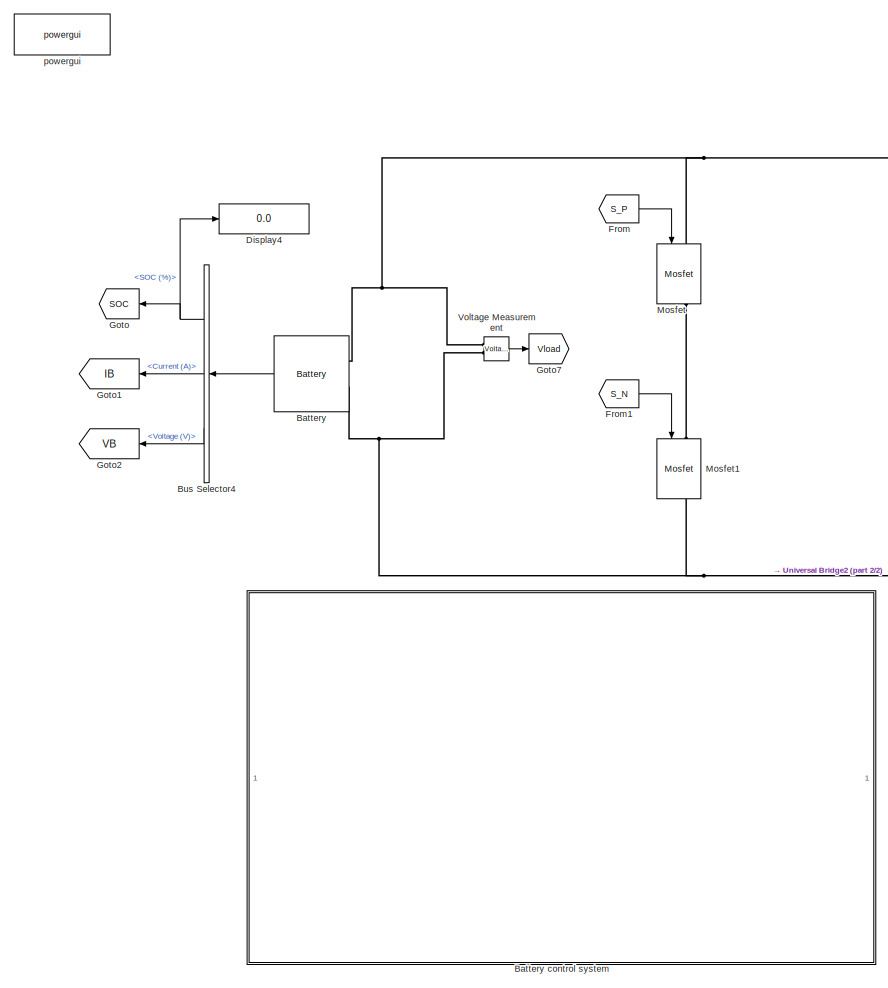
[diagram: root canvas - part 1/2, left side, full height]
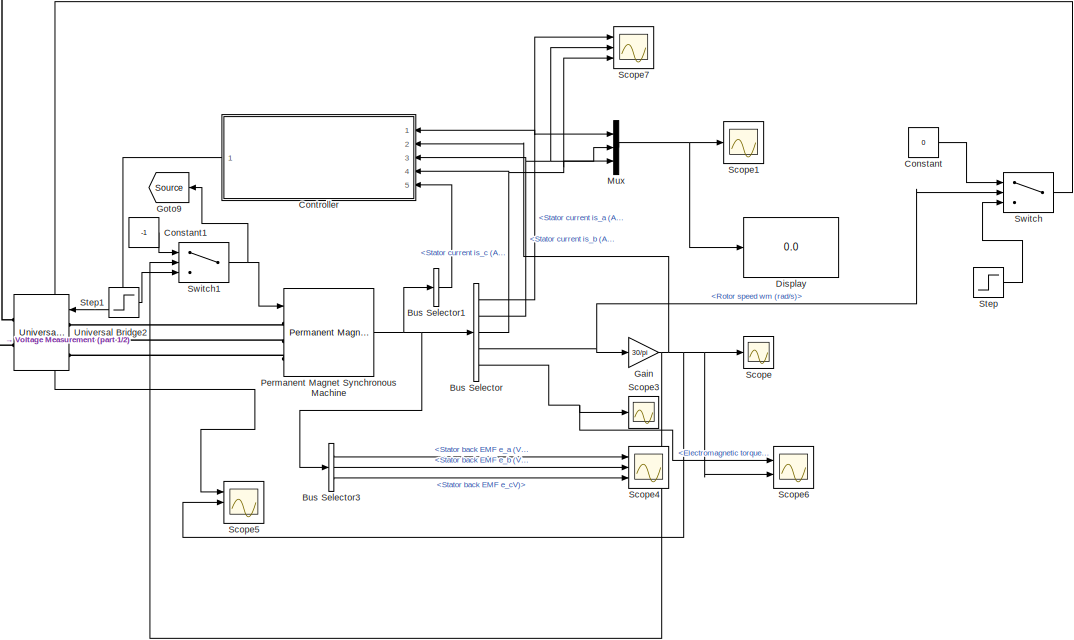
[diagram: root canvas - part 2/2, middle right region]
MODEL slx_4d65a19fce29
KIND model
CONFIG AbsTol = auto
CONFIG EnableMultiTasking = off
CONFIG FixedStep = auto
CONFIG MaxStep = 1e-4
CONFIG MinStep = auto
CONFIG RelTol = 1e-3
CONFIG SampleTimeConstraint = Unconstrained
CONFIG SolverName = ode45
CONFIG StartTime = 0.0
CONFIG StopTime = inf
BLOCK [Reference] Battery  REF=spsBatteryLib/Battery
  Ports = [0, 1, 0, 0, 0, 2]
  SourceBlock = spsBatteryLib/Battery
  SourceProductBaseCode = PS
  SourceType = Battery
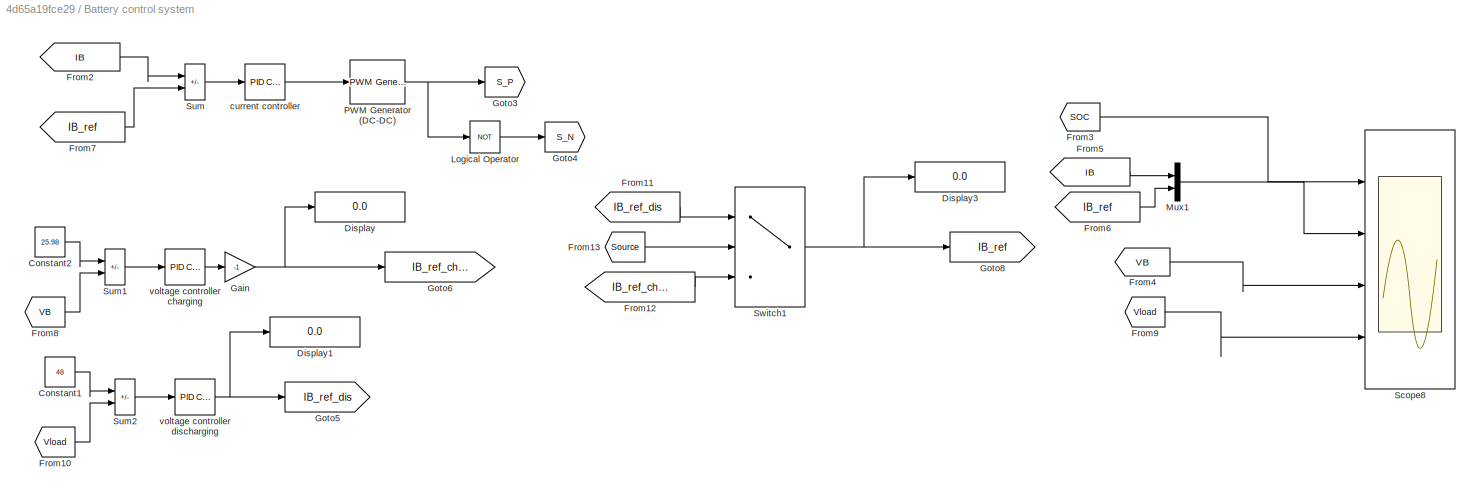
BLOCK [SubSystem] Battery control system
  Ports = []
  RequestExecContextInheritance = off
BLOCK [Constant] Battery control system/Constant1
  Value = 48
BLOCK [Constant] Battery control system/Constant2
  Value = 25.98
BLOCK [Display] Battery control system/Display
  Decimation = 1
  Ports = [1]
BLOCK [Display] Battery control system/Display1
  Decimation = 1
  Ports = [1]
BLOCK [Display] Battery control system/Display3
  Decimation = 1
  Ports = [1]
BLOCK [From] Battery control system/From10
  GotoTag = Vload
BLOCK [From] Battery control system/From11
  GotoTag = IB_ref_dis
BLOCK [From] Battery control system/From12
  GotoTag = IB_ref_charge
BLOCK [From] Battery control system/From13
  GotoTag = Source
BLOCK [From] Battery control system/From2
  GotoTag = IB
BLOCK [From] Battery control system/From3
  GotoTag = SOC
BLOCK [From] Battery control system/From4
  GotoTag = VB
BLOCK [From] Battery control system/From5
  GotoTag = IB
BLOCK [From] Battery control system/From6
  GotoTag = IB_ref
BLOCK [From] Battery control system/From7
  GotoTag = IB_ref
BLOCK [From] Battery control system/From8
  GotoTag = VB
BLOCK [From] Battery control system/From9
  GotoTag = Vload
BLOCK [Gain] Battery control system/Gain
  Gain = -1
BLOCK [Goto] Battery control system/Goto3
  GotoTag = S_P
BLOCK [Goto] Battery control system/Goto4
  GotoTag = S_N
BLOCK [Goto] Battery control system/Goto5
  GotoTag = IB_ref_dis
BLOCK [Goto] Battery control system/Goto6
  GotoTag = IB_ref_charge
BLOCK [Goto] Battery control system/Goto8
  GotoTag = IB_ref
BLOCK [Logic] Battery control system/Logical Operator
  AllPortsSameDT = off
  Operator = NOT
  OutDataTypeStr = boolean
  Ports = [1, 1]
BLOCK [Mux] Battery control system/Mux1
  DisplayOption = bar
  Inputs = 2
  Ports = [2, 1]
BLOCK [Reference] Battery control system/PWM Generator (DC-DC)  REF=spsPWMGeneratorDCDCLib/PWM Generator
(DC-DC)
  Ports = [1, 1]
  SourceBlock = spsPWMGeneratorDCDCLib/PWM Generator\n(DC-DC)
  SourceProductBaseCode = PS
  SourceType = PWM Generator (DC-DC)
BLOCK [Scope] Battery control system/Scope8
  Floating = off
  NumInputPorts = 4
  Ports = [4]
  ScopeSpecificationString = Simulink.scopes.TimeScopeBlockCfg('CurrentConfiguration', extmgr.ConfigurationSet(extmgr.Configuration('Core','General UI',true,'FigureColor',[1 1 1]),extmgr.Configuration('Core','Source UI',true),extmgr.Configuration('Sources','WiredSimulink',true,'DataLoggingVariableName','ScopeData1'),extmgr.Configuration('Visuals','Time Domain',true,'SerializedDisplays',{struct('MinYLimReal','-1.00000','MaxYLi...<+3636ch>
BLOCK [Sum] Battery control system/Sum
  IconShape = rectangular
  Inputs = |+-
  Ports = [2, 1]
BLOCK [Sum] Battery control system/Sum1
  IconShape = rectangular
  Inputs = |+-
  Ports = [2, 1]
BLOCK [Sum] Battery control system/Sum2
  IconShape = rectangular
  Inputs = |+-
  Ports = [2, 1]
BLOCK [Switch] Battery control system/Switch1
  Criteria = u2 > Threshold
  InputSameDT = off
  SaturateOnIntegerOverflow = off
  ZeroCross = off
BLOCK [Reference] Battery control system/current controller  REF=pid_lib/PID Controller
  Ports = [1, 1]
  SourceBlock = pid_lib/PID Controller
  SourceProductBaseCode = SL
  SourceType = PID 1dof
BLOCK [Reference] Battery control system/voltage controller charging  REF=pid_lib/PID Controller
  Ports = [1, 1]
  SourceBlock = pid_lib/PID Controller
  SourceProductBaseCode = SL
  SourceType = PID 1dof
BLOCK [Reference] Battery control system/voltage controller discharging  REF=pid_lib/PID Controller
  Ports = [1, 1]
  SourceBlock = pid_lib/PID Controller
  SourceProductBaseCode = SL
  SourceType = PID 1dof
BLOCK [BusSelector] Bus Selector
  OutputSignals = Stator current is_a (A),Stator current is_b (A),Stator current is_c (A),Rotor speed wm (rad/s),Electromagnetic torque Te (N*m)
  Ports = [1, 5]
BLOCK [BusSelector] Bus Selector1
  OutputAsBus = on
  OutputSignals = Hall effect signal h_a,Hall effect signal h_b,Hall effect signal h_c
  Ports = [1, 1]
BLOCK [BusSelector] Bus Selector3
  OutputSignals = Stator back EMF e_a (V),Stator back EMF e_b (V),Stator back EMF e_cV)
  Ports = [1, 3]
BLOCK [BusSelector] Bus Selector4
  OutputSignals = SOC (%),Current (A),Voltage (V)
  Ports = [1, 3]
BLOCK [Constant] Constant
  Commented = on
  Value = 0
BLOCK [Constant] Constant1
  Value = -1
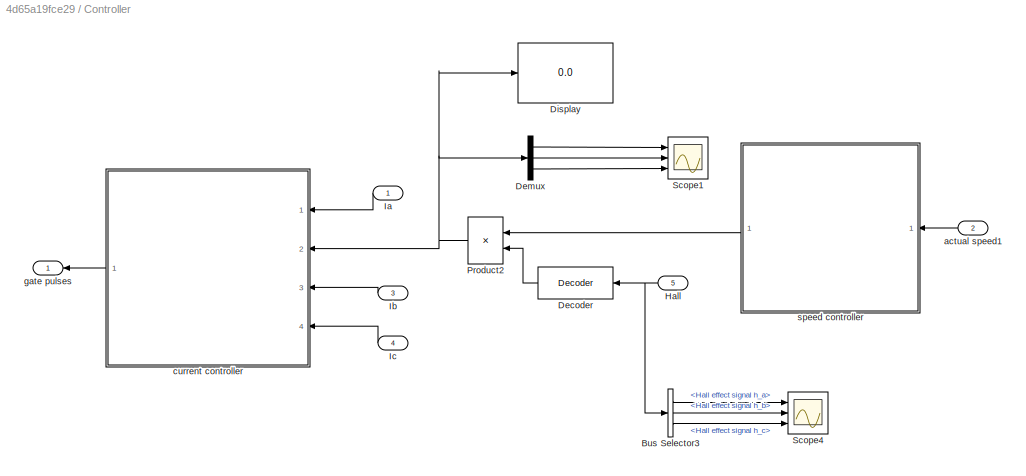
BLOCK [SubSystem] Controller
  Ports = [5, 1]
  RequestExecContextInheritance = off
BLOCK [BusSelector] Controller/Bus Selector3
  OutputSignals = Hall effect signal h_a,Hall effect signal h_b,Hall effect signal h_c
  Ports = [1, 3]
BLOCK [Reference] Controller/Decoder  REF=AC7DriveInternalModels/Current Controller/Decoder
  NameLocation = top
  Ports = [1, 1]
  SourceBlock = AC7DriveInternalModels/Current Controller/Decoder
  SourceProductBaseCode = PS
  SourceType = SubSystem
BLOCK [Demux] Controller/Demux
  Outputs = 3
  Ports = [1, 3]
BLOCK [Display] Controller/Display
  Decimation = 1
  Ports = [1]
BLOCK [Inport] Controller/Hall 
  NameLocation = top
  Port = 5
BLOCK [Inport] Controller/Ia
BLOCK [Inport] Controller/Ib
  Port = 3
BLOCK [Inport] Controller/Ic
  Port = 4
BLOCK [Product] Controller/Product2
  NameLocation = top
  OutDataTypeStr = Inherit: Same as first input
  Ports = [2, 1]
  SaturateOnIntegerOverflow = on
BLOCK [Scope] Controller/Scope1
  Floating = off
  NumInputPorts = 3
  Ports = [3]
  ScopeSpecificationString = C++SS(StrPVP('Location','[1, 54, 1921, 1029]'),StrPVP('Open','off'),StrPVP('ZoomMode','xonly'),MxPVP('AxesTitles',54,'struct(''axes1'',''%<SignalLabel>'',''axes2'',''%<SignalLabel>'',''axes3'',''%<SignalLabel>'')'),MxPVP('ScopeGraphics',57,'struct(''FigureColor'',''[0.5 0.5 0.5]'',''AxesColor'',''[0 0 0]'',''AxesTickColor'',''[1 1 1]'',''LineColors'',''[1 1 0;1 0 1;0 1 1;1 0 0;0 1 0;0 0 1]'',''Lin...<+405ch>
BLOCK [Scope] Controller/Scope4
  Floating = off
  NumInputPorts = 3
  Ports = [3]
  ScopeSpecificationString = C++SS(StrPVP('Location','[1, 55, 1921, 1029]'),StrPVP('Open','off'),MxPVP('AxesTitles',54,'struct(''axes1'',''%<SignalLabel>'',''axes2'',''%<SignalLabel>'',''axes3'',''%<SignalLabel>'')'),MxPVP('ScopeGraphics',57,'struct(''FigureColor'',''[0.5 0.5 0.5]'',''AxesColor'',''[0 0 0]'',''AxesTickColor'',''[1 1 1]'',''LineColors'',''[1 1 0;1 0 1;0 1 1;1 0 0;0 1 0;0 0 1]'',''LineStyles'',''-|-|-|-|-|-'','...<+378ch>
BLOCK [Inport] Controller/actual speed1
  Port = 2
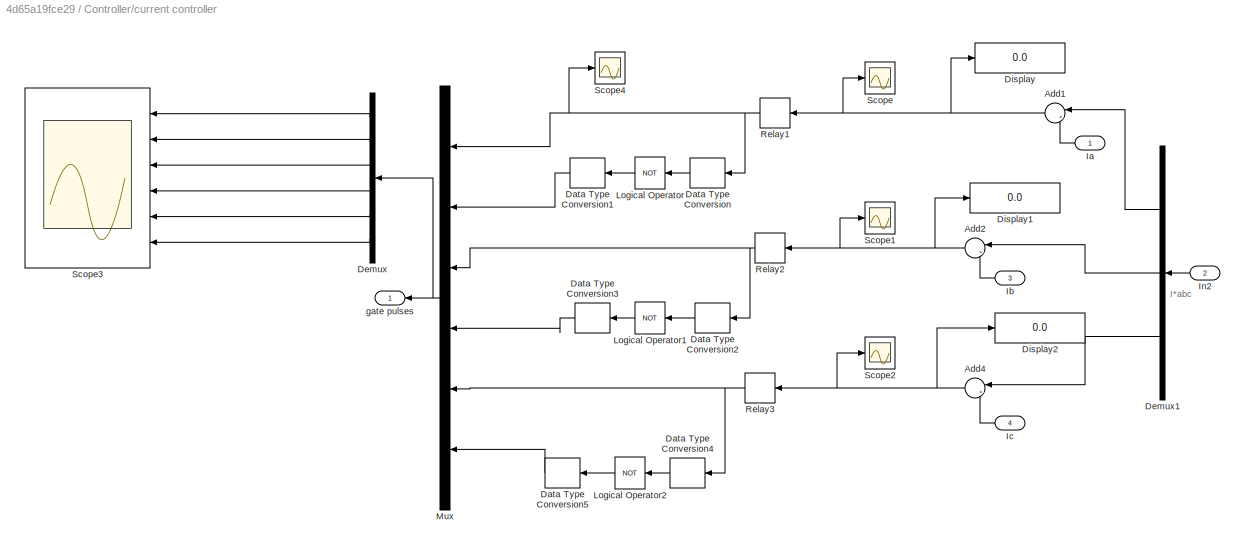
BLOCK [SubSystem] Controller/current controller
  Ports = [4, 1]
  RequestExecContextInheritance = off
BLOCK [Sum] Controller/current controller/Add1
  Inputs = |+-
  NameLocation = top
  Ports = [2, 1]
BLOCK [Sum] Controller/current controller/Add2
  Inputs = |+-
  NameLocation = top
  Ports = [2, 1]
BLOCK [Sum] Controller/current controller/Add4
  Inputs = |+-
  NameLocation = top
  Ports = [2, 1]
BLOCK [DataTypeConversion] Controller/current controller/Data Type Conversion
  NameLocation = top
BLOCK [DataTypeConversion] Controller/current controller/Data Type Conversion1
  NameLocation = top
BLOCK [DataTypeConversion] Controller/current controller/Data Type Conversion2
  NameLocation = top
BLOCK [DataTypeConversion] Controller/current controller/Data Type Conversion3
  NameLocation = top
BLOCK [DataTypeConversion] Controller/current controller/Data Type Conversion4
  NameLocation = top
BLOCK [DataTypeConversion] Controller/current controller/Data Type Conversion5
  NameLocation = top
BLOCK [Demux] Controller/current controller/Demux
  NameLocation = top
  Outputs = 6
  Ports = [1, 6]
BLOCK [Demux] Controller/current controller/Demux1
  DisplayOption = none
  NameLocation = top
  Outputs = 3
  Ports = [1, 3]
BLOCK [Display] Controller/current controller/Display
  Decimation = 1
  Ports = [1]
BLOCK [Display] Controller/current controller/Display1
  Decimation = 1
  Ports = [1]
BLOCK [Display] Controller/current controller/Display2
  Decimation = 1
  Ports = [1]
BLOCK [Inport] Controller/current controller/Ia
BLOCK [Inport] Controller/current controller/Ib
  Port = 3
BLOCK [Inport] Controller/current controller/Ic
  Port = 4
BLOCK [Inport] Controller/current controller/In2
  Port = 2
BLOCK [Logic] Controller/current controller/Logical Operator
  AllPortsSameDT = off
  NameLocation = top
  Operator = NOT
  OutDataTypeStr = boolean
  Ports = [1, 1]
BLOCK [Logic] Controller/current controller/Logical Operator1
  AllPortsSameDT = off
  NameLocation = top
  Operator = NOT
  OutDataTypeStr = boolean
  Ports = [1, 1]
BLOCK [Logic] Controller/current controller/Logical Operator2
  AllPortsSameDT = off
  NameLocation = top
  Operator = NOT
  OutDataTypeStr = boolean
  Ports = [1, 1]
BLOCK [Mux] Controller/current controller/Mux
  DisplayOption = bar
  Inputs = 6
  NameLocation = top
  Ports = [6, 1]
BLOCK [Relay] Controller/current controller/Relay1
  NameLocation = top
  OffSwitchValue = -5
  OnSwitchValue = 5
BLOCK [Relay] Controller/current controller/Relay2
  NameLocation = top
  OffSwitchValue = -5
  OnSwitchValue = 5
BLOCK [Relay] Controller/current controller/Relay3
  NameLocation = top
  OffSwitchValue = -5
  OnSwitchValue = 5
BLOCK [Scope] Controller/current controller/Scope
  Floating = off
  NumInputPorts = 1
  Ports = [1]
  ScopeSpecificationString = C++SS(StrPVP('Location','[1, 55, 1921, 1029]'),StrPVP('Open','off'),StrPVP('ZoomMode','xonly'),MxPVP('AxesTitles',54,'struct(''axes1'',''%<SignalLabel>'')'),MxPVP('ScopeGraphics',57,'struct(''FigureColor'',''[0.5 0.5 0.5]'',''AxesColor'',''[0 0 0]'',''AxesTickColor'',''[1 1 1]'',''LineColors'',''[1 1 0;1 0 1;0 1 1;1 0 0;0 1 0;0 0 1]'',''LineStyles'',''-|-|-|-|-|-'',''LineWidths'',''[0.5 0.5 0.5 0....<+297ch>  <repeated x3 — deduplicated; at blocks: Scope, Scope1, Scope2>
BLOCK [Scope] Controller/current controller/Scope1
  Floating = off
  NumInputPorts = 1
  Ports = [1]
BLOCK [Scope] Controller/current controller/Scope2
  Floating = off
  NumInputPorts = 1
  Ports = [1]
BLOCK [Scope] Controller/current controller/Scope3
  Floating = off
  NameLocation = top
  NumInputPorts = 6
  Ports = [6]
  ScopeSpecificationString = C++SS(StrPVP('Location','[1, 55, 1921, 1029]'),StrPVP('Open','off'),StrPVP('ZoomMode','xonly'),MxPVP('AxesTitles',54,'struct(''axes1'',''%<SignalLabel>'',''axes2'',''%<SignalLabel>'',''axes3'',''%<SignalLabel>'',''axes4'',''%<SignalLabel>'',''axes5'',''%<SignalLabel>'',''axes6'',''%<SignalLabel>'')'),MxPVP('ScopeGraphics',57,'struct(''FigureColor'',''[0.5 0.5 0.5]'',''AxesColor'',''[0 0 0]'',''Axe...<+507ch>
BLOCK [Scope] Controller/current controller/Scope4
  Floating = off
  NumInputPorts = 1
  Ports = [1]
  ScopeSpecificationString = C++SS(StrPVP('Location','[1, 55, 1921, 1029]'),StrPVP('Open','off'),StrPVP('ZoomMode','xonly'),MxPVP('AxesTitles',54,'struct(''axes1'',''%<SignalLabel>'')'),MxPVP('ScopeGraphics',57,'struct(''FigureColor'',''[0.5 0.5 0.5]'',''AxesColor'',''[0 0 0]'',''AxesTickColor'',''[1 1 1]'',''LineColors'',''[1 1 0;1 0 1;0 1 1;1 0 0;0 1 0;0 0 1]'',''LineStyles'',''-|-|-|-|-|-'',''LineWidths'',''[0.5 0.5 0.5 0....<+298ch>
BLOCK [Outport] Controller/current controller/gate pulses
  VectorParamsAs1DForOutWhenUnconnected = off
BLOCK [Outport] Controller/gate pulses
  VectorParamsAs1DForOutWhenUnconnected = off
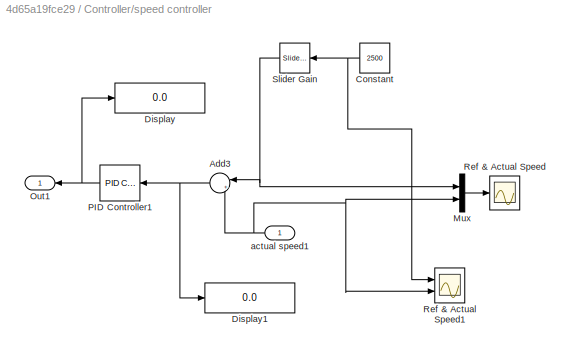
BLOCK [SubSystem] Controller/speed controller
  Ports = [1, 1]
  RequestExecContextInheritance = off
BLOCK [Sum] Controller/speed controller/Add3
  Inputs = |+-
  NameLocation = top
  Ports = [2, 1]
BLOCK [Constant] Controller/speed controller/Constant
  NameLocation = top
  Value = 2500
BLOCK [Display] Controller/speed controller/Display
  Decimation = 1
  Ports = [1]
BLOCK [Display] Controller/speed controller/Display1
  Decimation = 1
  Ports = [1]
BLOCK [Mux] Controller/speed controller/Mux
  DisplayOption = bar
  Inputs = 2
  Ports = [2, 1]
BLOCK [Outport] Controller/speed controller/Out1
  VectorParamsAs1DForOutWhenUnconnected = off
BLOCK [Reference] Controller/speed controller/PID Controller1  REF=pid_lib/PID Controller
  Ports = [1, 1]
  SourceBlock = pid_lib/PID Controller
  SourceProductBaseCode = SL
  SourceType = PID 1dof
BLOCK [Scope] Controller/speed controller/Ref & Actual Speed
  Floating = off
  NumInputPorts = 1
  Ports = [1]
  ScopeSpecificationString = Simulink.scopes.TimeScopeBlockCfg('CurrentConfiguration', extmgr.ConfigurationSet(extmgr.Configuration('Core','General UI',true),extmgr.Configuration('Core','Source UI',true),extmgr.Configuration('Sources','WiredSimulink',true,'DataLogging',true,'DataLoggingVariableName','ScopeData10','DataLoggingSaveFormat','StructureWithTime','DataLoggingMaxPoints','50000000','DataLoggingDecimation','1','DataLog...<+1864ch>
BLOCK [Scope] Controller/speed controller/Ref & Actual Speed1
  Floating = off
  NumInputPorts = 2
  Ports = [2]
  ScopeSpecificationString = Simulink.scopes.TimeScopeBlockCfg('CurrentConfiguration', extmgr.ConfigurationSet(extmgr.Configuration('Core','General UI',true),extmgr.Configuration('Core','Source UI',true),extmgr.Configuration('Sources','WiredSimulink',true,'DataLogging',true,'DataLoggingVariableName','ScopeData16','DataLoggingSaveFormat','StructureWithTime','DataLoggingMaxPoints','50000000','DataLoggingDecimation','1','DataLog...<+2424ch>
BLOCK [Reference] Controller/speed controller/Slider Gain  REF=simulink/Math
Operations/Slider
Gain
  Ports = [1, 1]
  SourceBlock = simulink/Math\nOperations/Slider\nGain
  SourceProductBaseCode = SL
  SourceType = Slider Gain
BLOCK [Inport] Controller/speed controller/actual speed1
BLOCK [Display] Display
  Decimation = 1
  Ports = [1]
BLOCK [Display] Display4
  Decimation = 1
  Ports = [1]
BLOCK [From] From
  GotoTag = S_P
BLOCK [From] From1
  GotoTag = S_N
BLOCK [Gain] Gain
  Gain = 30/pi
BLOCK [Goto] Goto
  GotoTag = SOC
BLOCK [Goto] Goto1
  GotoTag = IB
BLOCK [Goto] Goto2
  GotoTag = VB
BLOCK [Goto] Goto7
  GotoTag = Vload
BLOCK [Goto] Goto9
  GotoTag = Source
  NameLocation = top
BLOCK [Reference] Mosfet  REF=spsMosfetLib/Mosfet
  NameLocation = left
  Ports = [1, 1, 0, 0, 0, 1, 1]
  SourceBlock = spsMosfetLib/Mosfet
  SourceProductBaseCode = PS
  SourceType = Mosfet
BLOCK [Reference] Mosfet1  REF=spsMosfetLib/Mosfet
  NameLocation = left
  Ports = [1, 1, 0, 0, 0, 1, 1]
  SourceBlock = spsMosfetLib/Mosfet
  SourceProductBaseCode = PS
  SourceType = Mosfet
BLOCK [Mux] Mux
  DisplayOption = bar
  Inputs = 3
  Ports = [3, 1]
BLOCK [Reference] Permanent Magnet Synchronous Machine  REF=spsPermanentMagnetSynchronousMachineLib/Permanent Magnet
Synchronous Machine
  Ports = [1, 1, 0, 0, 0, 3]
  SourceBlock = spsPermanentMagnetSynchronousMachineLib/Permanent Magnet\nSynchronous Machine
  SourceProductBaseCode = PS
  SourceType = Permanent Magnet Synchronous Machine
BLOCK [Scope] Scope
  Floating = off
  NumInputPorts = 1
  Ports = [1]
  ScopeSpecificationString = Simulink.scopes.TimeScopeBlockCfg('CurrentConfiguration', extmgr.ConfigurationSet(extmgr.Configuration('Core','General UI',true),extmgr.Configuration('Core','Source UI',true),extmgr.Configuration('Sources','WiredSimulink',true,'DataLoggingSaveFormat','StructureWithTime','DataLoggingDecimation','1','DataLoggingDecimateData',true,'DataLoggingVariableName','ScopeData1'),extmgr.Configuration('Visuals'...<+1713ch>
BLOCK [Scope] Scope1
  Floating = off
  NumInputPorts = 1
  Ports = [1]
  ScopeSpecificationString = Simulink.scopes.TimeScopeBlockCfg('CurrentConfiguration', extmgr.ConfigurationSet(extmgr.Configuration('Core','General UI',true),extmgr.Configuration('Core','Source UI',true),extmgr.Configuration('Sources','WiredSimulink',true,'DataLoggingVariableName','ScopeData2','DataLoggingSaveFormat','StructureWithTime','DataLoggingDecimation','1','DataLoggingDecimateData',true),extmgr.Configuration('Visuals'...<+1825ch>
BLOCK [Scope] Scope3
  Floating = off
  NumInputPorts = 1
  Ports = [1]
  ScopeSpecificationString = Simulink.scopes.TimeScopeBlockCfg('CurrentConfiguration', extmgr.ConfigurationSet(extmgr.Configuration('Core','General UI',true),extmgr.Configuration('Core','Source UI',true),extmgr.Configuration('Sources','WiredSimulink',true,'DataLoggingVariableName','ScopeData4','DataLoggingSaveFormat','StructureWithTime','DataLoggingDecimation','1','DataLoggingDecimateData',true),extmgr.Configuration('Visuals'...<+1730ch>
BLOCK [Scope] Scope4
  Floating = off
  NumInputPorts = 3
  Ports = [3]
  ScopeSpecificationString = Simulink.scopes.TimeScopeBlockCfg('CurrentConfiguration', extmgr.ConfigurationSet(extmgr.Configuration('Core','General UI',true),extmgr.Configuration('Core','Source UI',true),extmgr.Configuration('Sources','WiredSimulink',true,'DataLoggingVariableName','ScopeData5','DataLoggingSaveFormat','StructureWithTime','DataLoggingDecimation','1','DataLoggingDecimateData',true),extmgr.Configuration('Visuals'...<+3114ch>
BLOCK [Scope] Scope5
  Floating = off
  NumInputPorts = 3
  Ports = [3]
  ScopeSpecificationString = Simulink.scopes.TimeScopeBlockCfg('CurrentConfiguration', extmgr.ConfigurationSet(extmgr.Configuration('Core','General UI',true),extmgr.Configuration('Core','Source UI',true),extmgr.Configuration('Sources','WiredSimulink',true,'DataLoggingVariableName','ScopeData6','DataLoggingSaveFormat','StructureWithTime','DataLoggingDecimation','1','DataLoggingDecimateData',true),extmgr.Configuration('Visuals'...<+3057ch>
BLOCK [Scope] Scope6
  Floating = off
  NumInputPorts = 2
  Ports = [2]
  ScopeSpecificationString = Simulink.scopes.TimeScopeBlockCfg('CurrentConfiguration', extmgr.ConfigurationSet(extmgr.Configuration('Core','General UI',true),extmgr.Configuration('Core','Source UI',true),extmgr.Configuration('Sources','WiredSimulink',true,'DataLoggingVariableName','ScopeData7','DataLoggingSaveFormat','StructureWithTime','DataLoggingDecimation','1','DataLoggingDecimateData',true),extmgr.Configuration('Visuals'...<+2308ch>
BLOCK [Scope] Scope7
  Floating = off
  NumInputPorts = 3
  Ports = [3]
  ScopeSpecificationString = Simulink.scopes.TimeScopeBlockCfg('CurrentConfiguration', extmgr.ConfigurationSet(extmgr.Configuration('Core','General UI',true),extmgr.Configuration('Core','Source UI',true),extmgr.Configuration('Sources','WiredSimulink',true,'DataLoggingVariableName','ScopeData8','DataLoggingSaveFormat','StructureWithTime','DataLoggingDecimation','1','DataLoggingDecimateData',true),extmgr.Configuration('Visuals'...<+3125ch>
BLOCK [Step] Step
  Commented = on
  SampleTime = 0
BLOCK [Step] Step1
  SampleTime = 0
BLOCK [Switch] Switch
  Commented = on
  Criteria = u2 > Threshold
  InputSameDT = off
  SaturateOnIntegerOverflow = off
BLOCK [Switch] Switch1
  Criteria = u2 > Threshold
  InputSameDT = off
  SaturateOnIntegerOverflow = off
BLOCK [Reference] Universal Bridge2  REF=spsUniversalBridgeLib/Universal Bridge
  NameLocation = top
  Ports = [1, 0, 0, 0, 0, 3, 2]
  SourceBlock = spsUniversalBridgeLib/Universal Bridge
  SourceProductBaseCode = PS
  SourceType = Universal Bridge
BLOCK [Reference] Voltage Measurement  REF=spsVoltageMeasurementLib/Voltage Measurement
  Ports = [0, 1, 0, 0, 0, 2]
  SourceBlock = spsVoltageMeasurementLib/Voltage Measurement
  SourceProductBaseCode = PS
  SourceType = Voltage Measurement
  UserDataPersistent = on
BLOCK [Reference] powergui  REF=spspowerguiLib/powergui
  Ports = []
  Priority = 2
  SourceBlock = spspowerguiLib/powergui
  SourceProductBaseCode = PS
  SourceType = PSB option menu block
ANNOTATION Controller/current controller: I*abc
LINE Battery control system/Constant1:1 -> Battery control system/Sum2:1
LINE Battery control system/Constant2:1 -> Battery control system/Sum1:1
LINE Battery control system/From10:1 -> Battery control system/Sum2:2
LINE Battery control system/From11:1 -> Battery control system/Switch1:1
LINE Battery control system/From12:1 -> Battery control system/Switch1:3
LINE Battery control system/From13:1 -> Battery control system/Switch1:2
LINE Battery control system/From2:1 -> Battery control system/Sum:1
LINE Battery control system/From3:1 -> Battery control system/Scope8:1
LINE Battery control system/From4:1 -> Battery control system/Scope8:3
LINE Battery control system/From5:1 -> Battery control system/Mux1:1
LINE Battery control system/From6:1 -> Battery control system/Mux1:2
LINE Battery control system/From7:1 -> Battery control system/Sum:2
LINE Battery control system/From8:1 -> Battery control system/Sum1:2
LINE Battery control system/From9:1 -> Battery control system/Scope8:4
NET Battery control system/Gain:1 -> Battery control system/Display:1, Battery control system/Goto6:1
LINE Battery control system/Logical Operator:1 -> Battery control system/Goto4:1
LINE Battery control system/Mux1:1 -> Battery control system/Scope8:2
NET Battery control system/PWM Generator (DC-DC):1 -> Battery control system/Goto3:1, Battery control system/Logical Operator:1
LINE Battery control system/Sum1:1 -> Battery control system/voltage controller charging:1
LINE Battery control system/Sum2:1 -> Battery control system/voltage controller discharging:1
LINE Battery control system/Sum:1 -> Battery control system/current controller:1
NET Battery control system/Switch1:1 -> Battery control system/Display3:1, Battery control system/Goto8:1
LINE Battery control system/current controller:1 -> Battery control system/PWM Generator (DC-DC):1
LINE Battery control system/voltage controller charging:1 -> Battery control system/Gain:1
NET Battery control system/voltage controller discharging:1 -> Battery control system/Display1:1, Battery control system/Goto5:1
LINE Battery:1 -> Bus Selector4:1
LINE Bus Selector1:1 -> Controller:5
LINE Bus Selector3:1 -> Scope4:1
LINE Bus Selector3:2 -> Scope4:2
LINE Bus Selector3:3 -> Scope4:3
NET Bus Selector4:1 -> Display4:1, Goto:1
LINE Bus Selector4:2 -> Goto1:1
LINE Bus Selector4:3 -> Goto2:1
NET Bus Selector:1 -> Controller:1, Mux:1, Scope7:1
NET Bus Selector:2 -> Controller:3, Mux:2, Scope7:2
NET Bus Selector:3 -> Controller:4, Mux:3, Scope7:3
NET Bus Selector:4 -> Gain:1, Switch:2
NET Bus Selector:5 -> Scope3:1, Scope6:1
LINE Constant1:1 -> Switch1:1
LINE Constant:1 -> Switch:1
LINE Controller/Bus Selector3:1 -> Controller/Scope4:1
LINE Controller/Bus Selector3:2 -> Controller/Scope4:2
LINE Controller/Bus Selector3:3 -> Controller/Scope4:3
LINE Controller/Decoder:1 -> Controller/Product2:2
LINE Controller/Demux:1 -> Controller/Scope1:1
LINE Controller/Demux:2 -> Controller/Scope1:2
LINE Controller/Demux:3 -> Controller/Scope1:3
NET Controller/Hall :1 -> Controller/Bus Selector3:1, Controller/Decoder:1
LINE Controller/Ia:1 -> Controller/current controller:1
LINE Controller/Ib:1 -> Controller/current controller:3
LINE Controller/Ic:1 -> Controller/current controller:4
NET Controller/Product2:1 -> Controller/Demux:1, Controller/Display:1, Controller/current controller:2
LINE Controller/actual speed1:1 -> Controller/speed controller:1
NET Controller/current controller/Add1:1 -> Controller/current controller/Display:1, Controller/current controller/Relay1:1, Controller/current controller/Scope:1
NET Controller/current controller/Add2:1 -> Controller/current controller/Display1:1, Controller/current controller/Relay2:1, Controller/current controller/Scope1:1
NET Controller/current controller/Add4:1 -> Controller/current controller/Display2:1, Controller/current controller/Relay3:1, Controller/current controller/Scope2:1
LINE Controller/current controller/Data Type Conversion1:1 -> Controller/current controller/Mux:2
LINE Controller/current controller/Data Type Conversion2:1 -> Controller/current controller/Logical Operator1:1
LINE Controller/current controller/Data Type Conversion3:1 -> Controller/current controller/Mux:4
LINE Controller/current controller/Data Type Conversion4:1 -> Controller/current controller/Logical Operator2:1
LINE Controller/current controller/Data Type Conversion5:1 -> Controller/current controller/Mux:6
LINE Controller/current controller/Data Type Conversion:1 -> Controller/current controller/Logical Operator:1
LINE Controller/current controller/Demux1:1 -> Controller/current controller/Add1:1
LINE Controller/current controller/Demux1:2 -> Controller/current controller/Add2:1
LINE Controller/current controller/Demux1:3 -> Controller/current controller/Add4:1
LINE Controller/current controller/Demux:1 -> Controller/current controller/Scope3:1
LINE Controller/current controller/Demux:2 -> Controller/current controller/Scope3:2
LINE Controller/current controller/Demux:3 -> Controller/current controller/Scope3:3
LINE Controller/current controller/Demux:4 -> Controller/current controller/Scope3:4
LINE Controller/current controller/Demux:5 -> Controller/current controller/Scope3:5
LINE Controller/current controller/Demux:6 -> Controller/current controller/Scope3:6
LINE Controller/current controller/Ia:1 -> Controller/current controller/Add1:2
LINE Controller/current controller/Ib:1 -> Controller/current controller/Add2:2
LINE Controller/current controller/Ic:1 -> Controller/current controller/Add4:2
LINE Controller/current controller/In2:1 -> Controller/current controller/Demux1:1
LINE Controller/current controller/Logical Operator1:1 -> Controller/current controller/Data Type Conversion3:1
LINE Controller/current controller/Logical Operator2:1 -> Controller/current controller/Data Type Conversion5:1
LINE Controller/current controller/Logical Operator:1 -> Controller/current controller/Data Type Conversion1:1
NET Controller/current controller/Mux:1 -> Controller/current controller/Demux:1, Controller/current controller/gate pulses:1
NET Controller/current controller/Relay1:1 -> Controller/current controller/Data Type Conversion:1, Controller/current controller/Mux:1, Controller/current controller/Scope4:1
NET Controller/current controller/Relay2:1 -> Controller/current controller/Data Type Conversion2:1, Controller/current controller/Mux:3
NET Controller/current controller/Relay3:1 -> Controller/current controller/Data Type Conversion4:1, Controller/current controller/Mux:5
LINE Controller/current controller:1 -> Controller/gate pulses:1
NET Controller/speed controller/Add3:1 -> Controller/speed controller/Display1:1, Controller/speed controller/PID Controller1:1
NET Controller/speed controller/Constant:1 -> Controller/speed controller/Ref & Actual Speed1:1, Controller/speed controller/Slider Gain:1
LINE Controller/speed controller/Mux:1 -> Controller/speed controller/Ref & Actual Speed:1
NET Controller/speed controller/PID Controller1:1 -> Controller/speed controller/Display:1, Controller/speed controller/Out1:1
NET Controller/speed controller/Slider Gain:1 -> Controller/speed controller/Add3:1, Controller/speed controller/Mux:1
NET Controller/speed controller/actual speed1:1 -> Controller/speed controller/Add3:2, Controller/speed controller/Mux:2, Controller/speed controller/Ref & Actual Speed1:2
LINE Controller/speed controller:1 -> Controller/Product2:1
LINE Controller:1 -> Universal Bridge2:1
LINE From1:1 -> Mosfet1:1
LINE From:1 -> Mosfet:1
NET Gain:1 -> Controller:2, Scope5:2, Scope6:2, Scope:1, Switch1:2
NET Mux:1 -> Display:1, Scope1:1
NET Permanent Magnet Synchronous Machine:1 -> Bus Selector1:1, Bus Selector3:1, Bus Selector:1
LINE Step1:1 -> Switch1:3
LINE Step:1 -> Switch:3
NET Switch1:1 -> Goto9:1, Permanent Magnet Synchronous Machine:1
LINE Switch:1 -> Scope5:1
LINE Voltage Measurement:1 -> Goto7:1
PNET net1: Battery:LConn1 -- Mosfet:LConn1 -- Universal Bridge2:RConn1 -- Voltage Measurement:LConn1
PNET net2: Battery:LConn2 -- Mosfet1:RConn1 -- Universal Bridge2:RConn2 -- Voltage Measurement:LConn2
PLINE Mosfet1:LConn1 -- Mosfet:RConn1
PLINE Permanent Magnet Synchronous Machine:LConn1 -- Universal Bridge2:LConn1
PLINE Permanent Magnet Synchronous Machine:LConn2 -- Universal Bridge2:LConn2
PLINE Permanent Magnet Synchronous Machine:LConn3 -- Universal Bridge2:LConn3
note: NET lines group one-source signal fan-out (src -> all destinations, sorted); 1:1 wires keep LINE; PNET lines group multi-terminal physical nets as a canonical sorted terminal list (undirected conserving connections); 2-terminal nets keep the pairwise PLINE form
